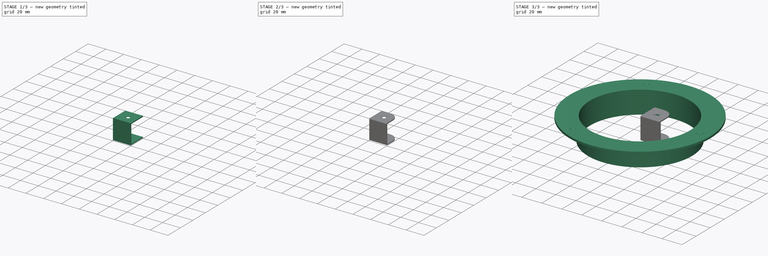
[diagram: build sequence overview — one tinted view per stage of 3, left to right]
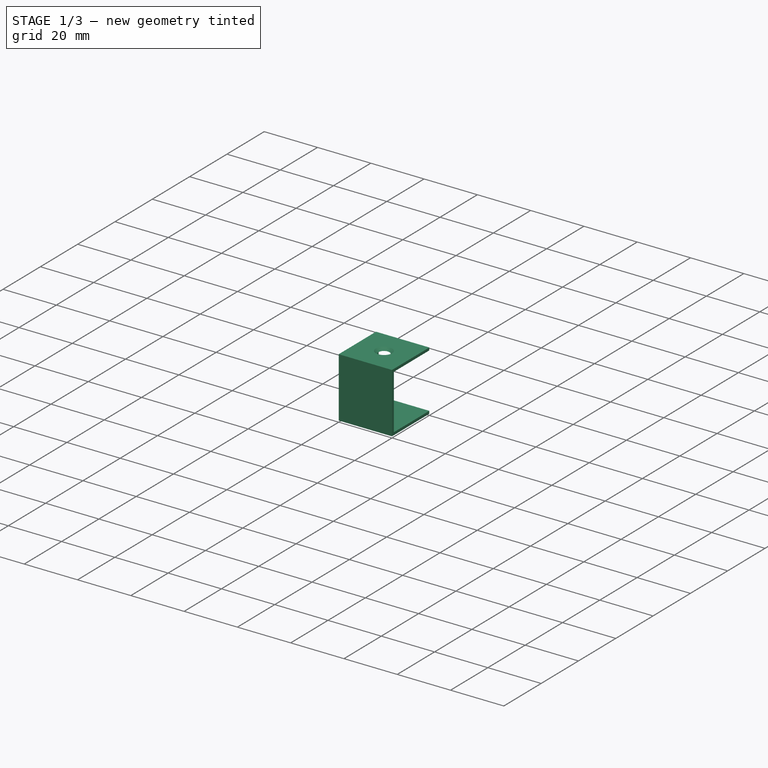
[diagram: stage 1 of 3 — iso view after this stage's code; geometry added in this stage tinted green]
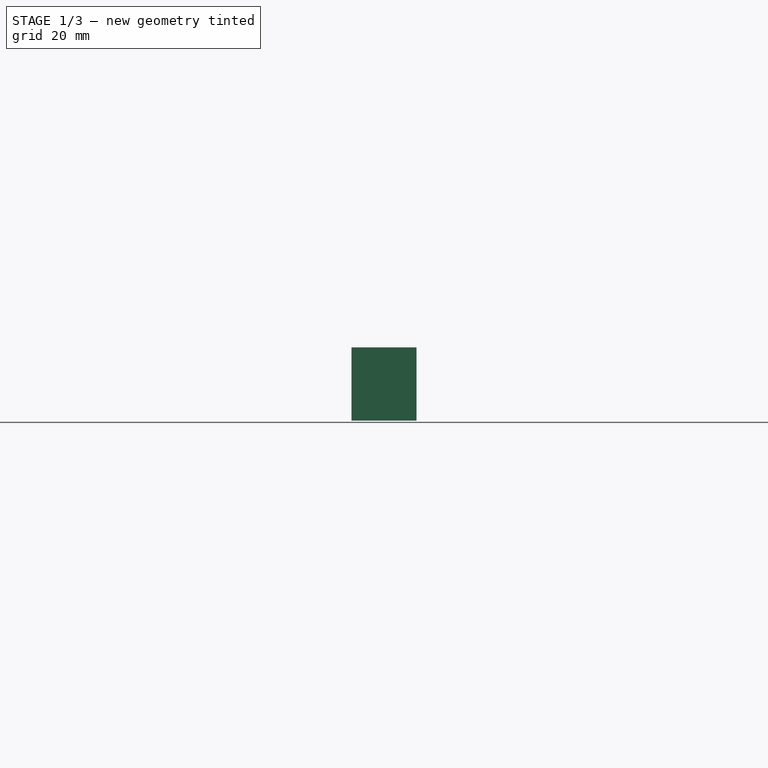
[diagram: stage 1 of 3 — front view after this stage's code; geometry added in this stage tinted green]
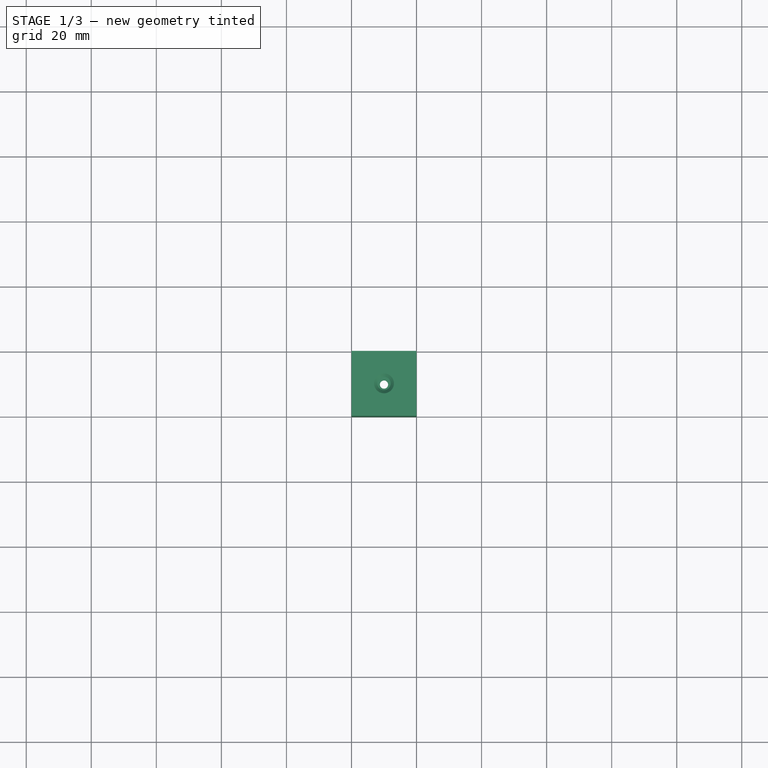
[diagram: stage 1 of 3 — top view after this stage's code; geometry added in this stage tinted green]
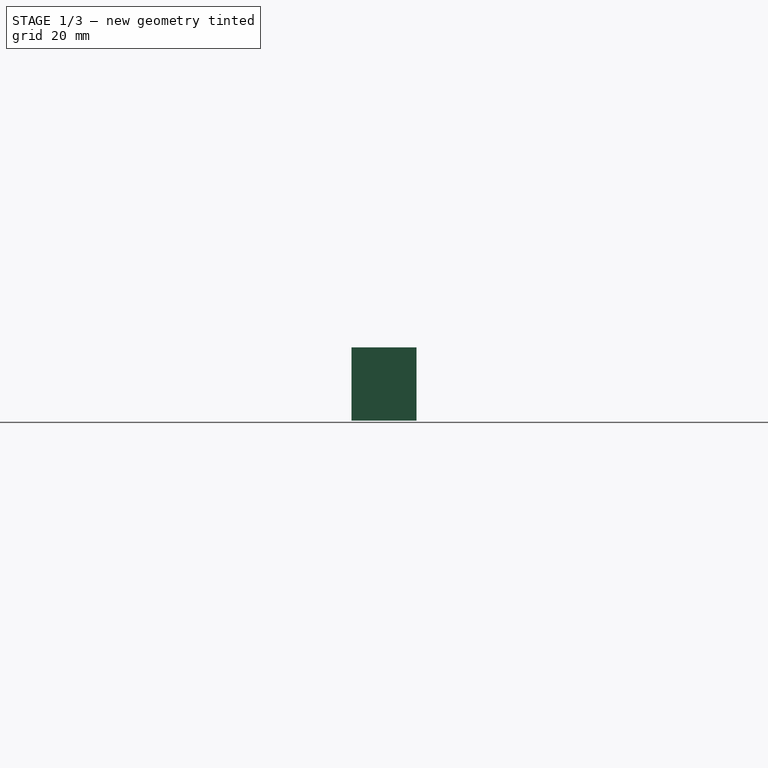
[diagram: stage 1 of 3 — right view after this stage's code; geometry added in this stage tinted green]
FCSTD DOCUMENT  (FreeCAD 0.22R37898 (Git))
Label: table
License: All rights reserved
LicenseURL: http://en.wikipedia.org/wiki/All_rights_reserved
objects: Sketcher::SketchObject×5, PartDesign::Hole×2, PartDesign::Body×2, PartDesign::Pad×1, PartDesign::Thickness×1, PartDesign::Revolution×1, PartDesign::PolarPattern×1, PartDesign::Pocket×1, PartDesign::Fillet×1
note: 22 computed .brp shape members not serialized (recipe doc carries the construction recipe); baked Part::Feature solids carry a one-line shape summary decoded from their .brp

FEATURE [Sketcher::SketchObject] Sketch
  AttachmentSupport = -> [XY_Plane]
  FullyConstrained = true
  MapMode = 5
  sketch-geometry (4):
    g0: LineSegment StartX=0 StartY=0 StartZ=0 EndX=20 EndY=0 EndZ=0
    g1: LineSegment StartX=20 StartY=0 StartZ=0 EndX=20 EndY=20 EndZ=0
    g2: LineSegment StartX=20 StartY=20 StartZ=0 EndX=0 EndY=20 EndZ=0
    g3: LineSegment StartX=0 StartY=20 StartZ=0 EndX=0 EndY=0 EndZ=0
  constraints (11):
    c: Coincident(g0,g1)
    c: Coincident(g1,g2)
    c: Coincident(g2,g3)
    c: Coincident(g3,g0)
    c: Horizontal(g0)
    c: Horizontal(g2)
    c: Vertical(g1)
    c: Vertical(g3)
    c: Distance(g1,g3) = 20
    c: Distance(g0,g2) = 20
    c: Coincident(g0,g-1)
FEATURE [PartDesign::Pad] Pad
  Direction = (0,0,1)
  Length = 22.5
  Length2 = 10
  Profile = -> Sketch
  ReferenceAxis = -> Sketch [N_Axis]
  Refine = true
  Suppressed = false
  Type = 0
FEATURE [PartDesign::Thickness] Thickness
  Base = -> Pad [Face2,Face3]
  BaseFeature = -> Pad
  Intersection = false
  Join = 0
  Mode = 0
  Refine = true
  Reversed = true
  SupportTransform = false
  Suppressed = false
  Value = 1
FEATURE [Sketcher::SketchObject] Sketch001
  AttachmentSupport = -> [Thickness]
  ExternalGeometry = -> [Thickness]
  FullyConstrained = false
  MapMode = 5
  Placement = pos=(0,0,22.5) rot=(0,0,1;0rad)
  sketch-geometry (2):
    g0: LineSegment StartX=20 StartY=0 StartZ=0 EndX=10 EndY=10 EndZ=0
    g1: Circle CenterX=10 CenterY=10 CenterZ=0 NormalX=0 NormalY=0 NormalZ=1 AngleXU=0 Radius=1.5
  constraints (3):
    c: Coincident(g0,g-4)
    c: Diameter(g1) = 3
    c: Coincident(g1,g0)
FEATURE [PartDesign::Hole] Hole
  BaseFeature = -> Thickness
  CustomThreadClearance = 0
  Depth = 73.007
  DepthType = 1
  Diameter = 2.52
  DrillForDepth = false
  DrillPoint = 1
  DrillPointAngle = 118
  HoleCutCountersinkAngle = 90
  HoleCutCustomValues = false
  HoleCutDepth = 0
  HoleCutDiameter = 6.1
  HoleCutType = 2
  ModelThread = true
  Profile = -> Sketch001 [Edge1]
  Refine = true
  Suppressed = false
  Tapered = false
  TaperedAngle = 90
  ThreadClass = 0
  ThreadDepth = 73.007
  ThreadDepthType = 0
  ThreadDirection = 0
  ThreadFit = 0
  ThreadSize = 9
  ThreadType = 1
  Threaded = true
  UseCustomThreadClearance = false
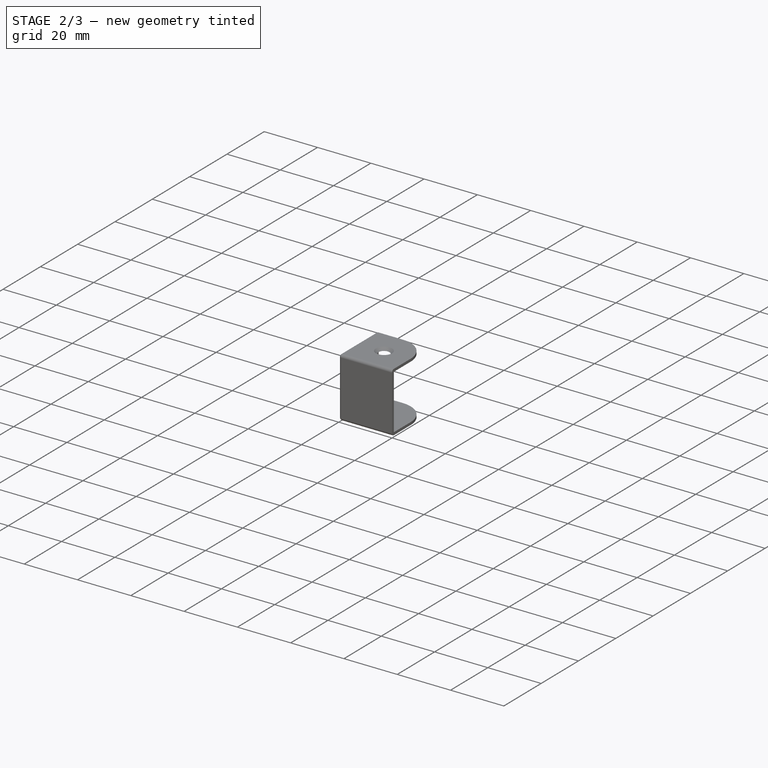
[diagram: stage 2 of 3 — iso view after this stage's code; geometry added in this stage tinted green]
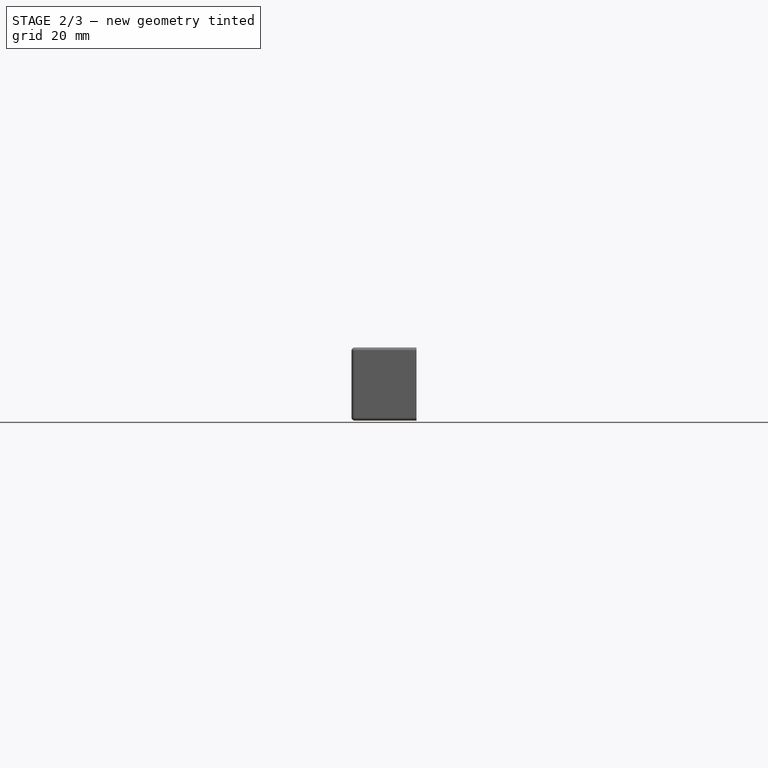
[diagram: stage 2 of 3 — front view after this stage's code; geometry added in this stage tinted green]
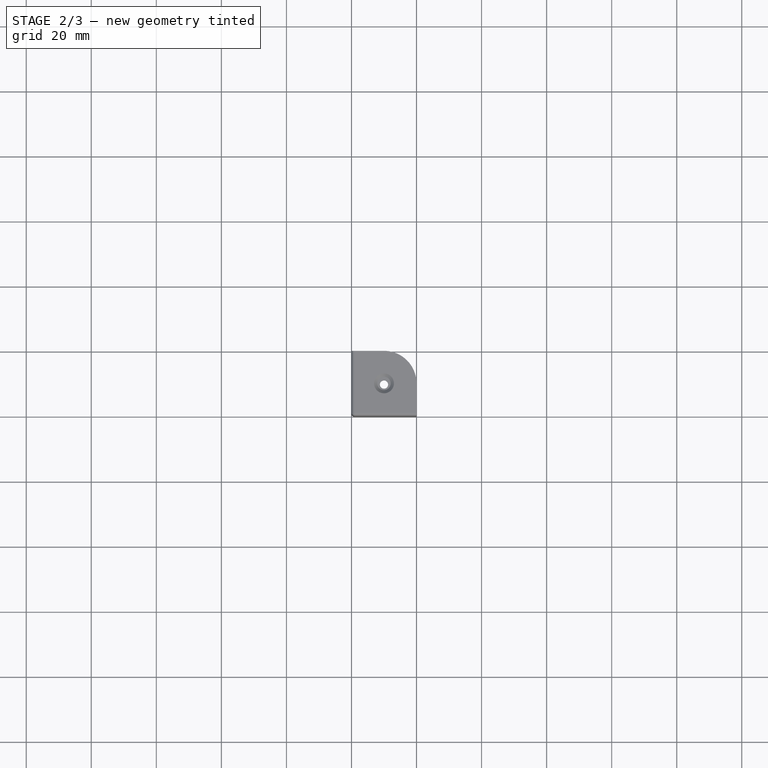
[diagram: stage 2 of 3 — top view after this stage's code; geometry added in this stage tinted green]
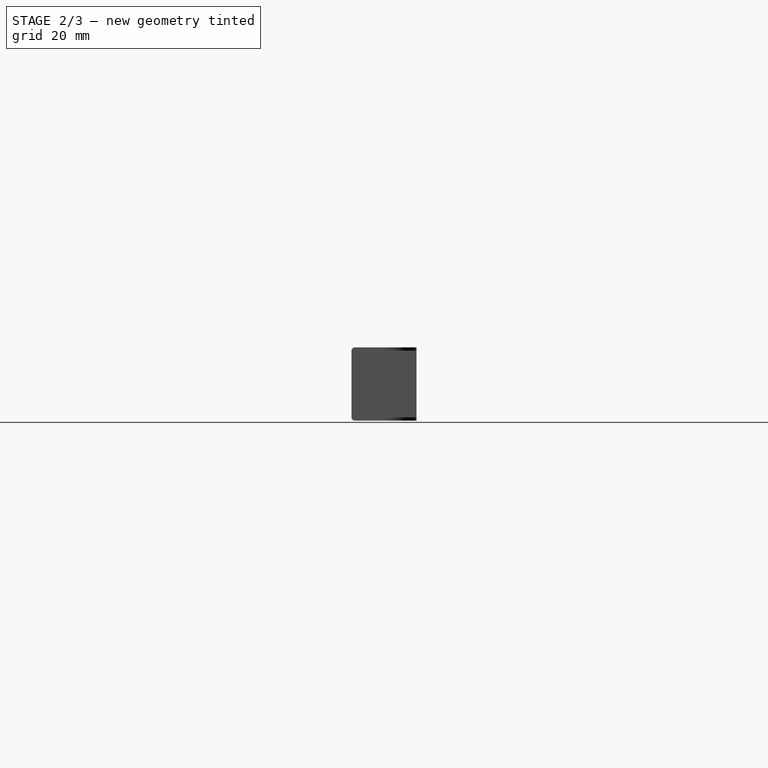
[diagram: stage 2 of 3 — right view after this stage's code; geometry added in this stage tinted green]
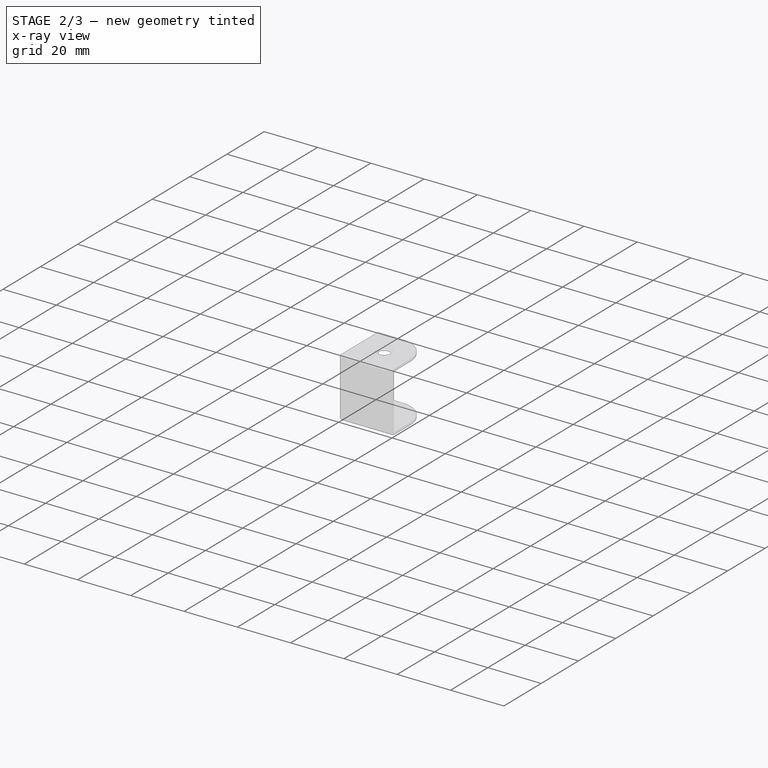
[diagram: stage 2 of 3 — x-ray composite at the iso view; earlier geometry ghosted, this stage's added geometry solid]
FEATURE [PartDesign::Body] Body001  label="cable hole"
  AllowCompound = false
  Group = -> [Sketch002,Revolution,Sketch003,Hole001,PolarPattern]
  Origin = -> Origin001
  Placement = pos=(0,0,0) rot=(1,0,0;3.14159rad)
  Tip = -> PolarPattern
FEATURE [Sketcher::SketchObject] Sketch004
  AttachmentSupport = -> [Hole]
  ExternalGeometry = -> [Hole]
  FullyConstrained = false
  MapMode = 5
  Placement = pos=(0,0,22.5) rot=(0,0,1;0rad)
  sketch-geometry (8):
    g0: LineSegment StartX=0 StartY=20 StartZ=0 EndX=20 EndY=0 EndZ=0
    g1: LineSegment StartX=0 StartY=0 StartZ=0 EndX=10 EndY=10 EndZ=0
    g2: LineSegment StartX=10 StartY=10 StartZ=0 EndX=10 EndY=20 EndZ=0
    g3: LineSegment StartX=10 StartY=10 StartZ=0 EndX=20 EndY=10 EndZ=0
    g4: ArcOfCircle CenterX=10 CenterY=10 CenterZ=0 NormalX=0 NormalY=0 NormalZ=1 AngleXU=0 Radius=10 StartAngle=0 EndAngle=1.5708
    g5: ArcOfCircle CenterX=10 CenterY=10 CenterZ=0 NormalX=0 NormalY=0 NormalZ=1 AngleXU=0 Radius=10 StartAngle=5.32e-14 EndAngle=1.5708
    g6: LineSegment StartX=10 StartY=20 StartZ=0 EndX=20 EndY=20 EndZ=0
    g7: LineSegment StartX=20 StartY=20 StartZ=0 EndX=20 EndY=10 EndZ=0
  constraints (16):
    c: Coincident(g0,g-3)
    c: Coincident(g0,g-4)
    c: Coincident(g1,g-1)
    c: PointOnObject(g1,g0)
    c: Coincident(g2,g1)
    c: Symmetric(g-3,g-3,g2)
    c: Vertical(g2)
    c: Coincident(g3,g1)
    c: Symmetric(g-4,g-4,g3)
    c: Coincident(g6,g4)
    c: Coincident(g6,g-4)
    c: Horizontal(g6)
    c: Coincident(g7,g6)
    c: Tangent(g7,g4) = 1.5708
    c: Vertical(g7)
    c: Block(g4)
FEATURE [PartDesign::Pocket] Pocket  label="round corner "
  BaseFeature = -> Hole
  Direction = (0,0,-1)
  Length = 5
  Length2 = 5
  Profile = -> Sketch004
  ReferenceAxis = -> Sketch004 [N_Axis]
  Refine = true
  Suppressed = false
  Type = 1
FEATURE [PartDesign::Fillet] Fillet
  Base = -> Pocket [Edge1,Edge6,Edge7,Edge4,Edge3]
  BaseFeature = -> Pocket
  Radius = 1
  Refine = true
  SupportTransform = false
  Suppressed = false
  UseAllEdges = false
FEATURE [PartDesign::Body] Body  label="edge protection"
  AllowCompound = false
  Group = -> [Sketch,Pad,Thickness,Sketch001,Hole,Sketch004,Pocket,Fillet]
  Origin = -> Origin
  Tip = -> Fillet
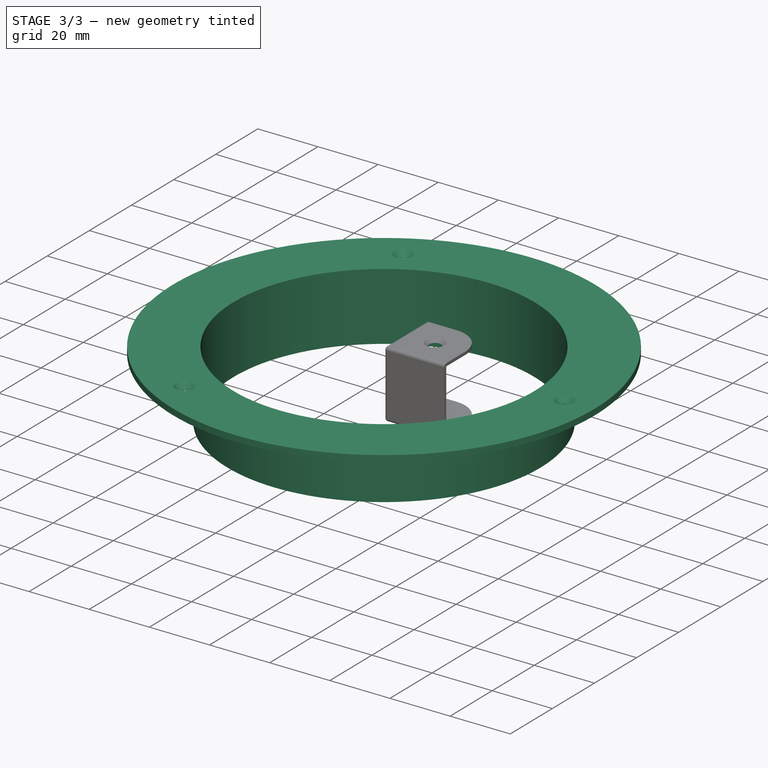
[diagram: stage 3 of 3 — iso view after this stage's code; geometry added in this stage tinted green]
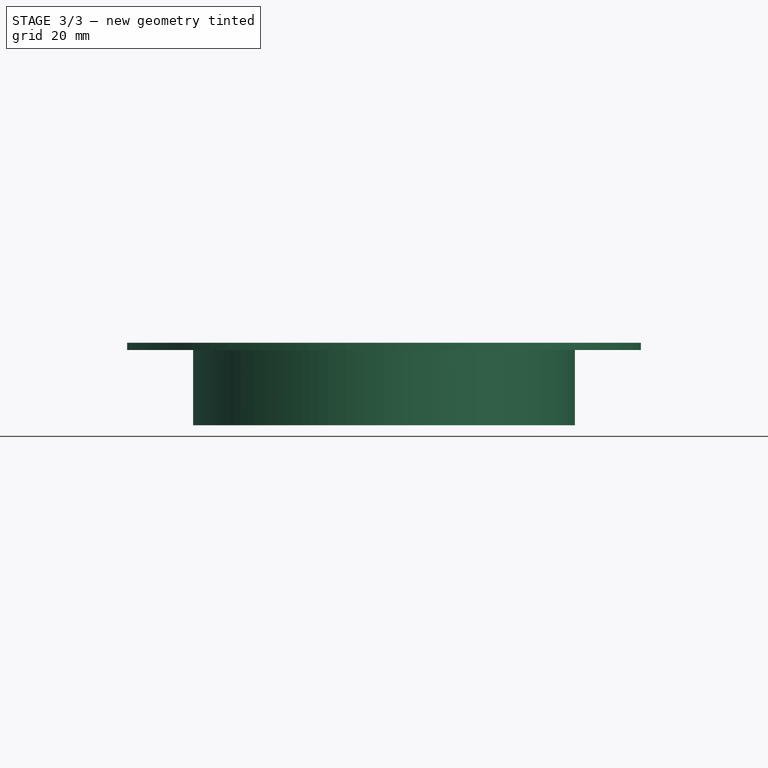
[diagram: stage 3 of 3 — front view after this stage's code; geometry added in this stage tinted green]
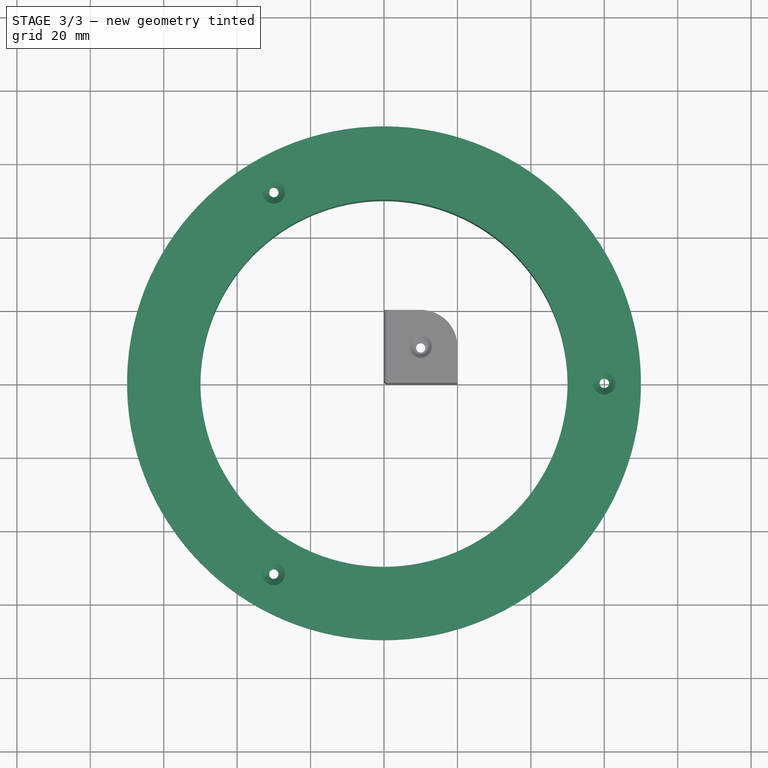
[diagram: stage 3 of 3 — top view after this stage's code; geometry added in this stage tinted green]
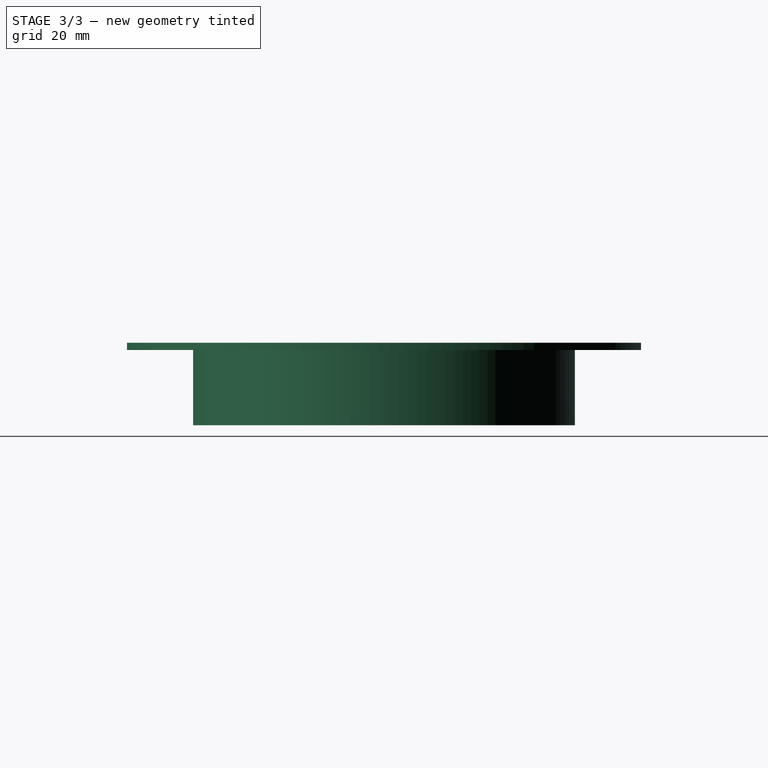
[diagram: stage 3 of 3 — right view after this stage's code; geometry added in this stage tinted green]
FEATURE [Sketcher::SketchObject] Sketch002
  AttachmentSupport = -> [YZ_Plane001]
  FullyConstrained = true
  MapMode = 5
  Placement = pos=(0,0,0) rot=(0.57735,0.57735,0.57735;2.0944rad)
  sketch-geometry (9):
    g0: LineSegment StartX=0 StartY=0 StartZ=0 EndX=0 EndY=22.5 EndZ=0
    g1: LineSegment StartX=0 StartY=22.5 StartZ=0 EndX=50 EndY=22.5 EndZ=0
    g2: LineSegment StartX=0 StartY=0 StartZ=0 EndX=50 EndY=0 EndZ=0
    g3: LineSegment StartX=50 StartY=22.5 StartZ=0 EndX=70 EndY=22.5 EndZ=0
    g4: LineSegment StartX=50 StartY=22.5 StartZ=0 EndX=50 EndY=0 EndZ=0
    g5: LineSegment StartX=70 StartY=22.5 StartZ=0 EndX=70 EndY=20.5 EndZ=0
    g6: LineSegment StartX=70 StartY=20.5 StartZ=0 EndX=52 EndY=20.5 EndZ=0
    g7: LineSegment StartX=52 StartY=20.5 StartZ=0 EndX=52 EndY=0 EndZ=0
    g8: LineSegment StartX=50 StartY=0 StartZ=0 EndX=52 EndY=0 EndZ=0
  constraints (25):
    c: Distance(g0) = 22.5
    c: Coincident(g0,g-1)
    c: PointOnObject(g0,g-2)
    c: Distance(g1) = 50
    c: Coincident(g1,g0)
    c: Horizontal(g1)
    c: Distance(g2) = 50
    c: Coincident(g2,g0)
    c: Horizontal(g2)
    c: Distance(g3) = 20
    c: Coincident(g3,g1)
    c: Horizontal(g3)
    c: Coincident(g4,g1)
    c: Coincident(g4,g2)
    c: Distance(g5) = 2
    c: Coincident(g5,g3)
    c: Vertical(g5)
    c: Distance(g6) = 18
    c: Coincident(g6,g5)
    c: Horizontal(g6)
    c: Coincident(g7,g6)
    c: PointOnObject(g7,g-1)
    c: Vertical(g7)
    c: Coincident(g8,g2)
    c: Coincident(g8,g7)
FEATURE [PartDesign::Revolution] Revolution
  Angle = 360
  Angle2 = 60
  Axis = (0,0,1)
  Base = (0,0,0)
  Placement = pos=(0,0,0) rot=(1,1,1;2.0944rad)
  Profile = -> Sketch002
  ReferenceAxis = -> Sketch002 [V_Axis]
  Refine = true
  Reversed = true
  Suppressed = false
  Type = 0
FEATURE [Sketcher::SketchObject] Sketch003
  AttachmentSupport = -> [Revolution]
  ExternalGeometry = -> [Revolution]
  FullyConstrained = false
  MapMode = 5
  Placement = pos=(-7.5e-15,2.5e-15,22.5) rot=(0,0,-1;1.5708rad)
  sketch-geometry (3):
    g0: LineSegment StartX=0.00472227 StartY=70 StartZ=0 EndX=0.00472227 EndY=50 EndZ=0
    g1: LineSegment StartX=-7.10743 StartY=60 StartZ=0 EndX=0.00472227 EndY=60 EndZ=0
    g2: Circle CenterX=0.00472227 CenterY=60 CenterZ=0 NormalX=0 NormalY=0 NormalZ=1 AngleXU=0 Radius=1.5
  constraints (8):
    c: PointOnObject(g0,g-4)
    c: PointOnObject(g0,g-3)
    c: Vertical(g0)
    c: Symmetric(g0,g0,g1)
    c: PointOnObject(g1,g0)
    c: Diameter(g2) = 3
    c: Coincident(g2,g1)
    c: Block(g2)
FEATURE [PartDesign::Hole] Hole001
  BaseFeature = -> Revolution
  CustomThreadClearance = 0
  Depth = 402.456
  DepthType = 1
  Diameter = 2.52
  DrillForDepth = false
  DrillPoint = 1
  DrillPointAngle = 118
  HoleCutCountersinkAngle = 90
  HoleCutCustomValues = false
  HoleCutDepth = 0
  HoleCutDiameter = 6.1
  HoleCutType = 2
  ModelThread = true
  Placement = pos=(0,0,0) rot=(1,1,1;2.0944rad)
  Profile = -> Sketch003 [Edge1]
  Refine = true
  Suppressed = false
  Tapered = false
  TaperedAngle = 90
  ThreadClass = 0
  ThreadDepth = 402.456
  ThreadDepthType = 0
  ThreadDirection = 0
  ThreadFit = 0
  ThreadSize = 9
  ThreadType = 1
  Threaded = true
  UseCustomThreadClearance = false
FEATURE [PartDesign::PolarPattern] PolarPattern
  Angle = 360
  Axis = -> Sketch003 [N_Axis]
  BaseFeature = -> Hole001
  Mode = 0
  Occurrences = 3
  Offset = 120
  Originals = -> [Hole001]
  Placement = pos=(0,0,0) rot=(1,1,1;2.0944rad)
  Refine = true
  Suppressed = false
  TransformMode = 0
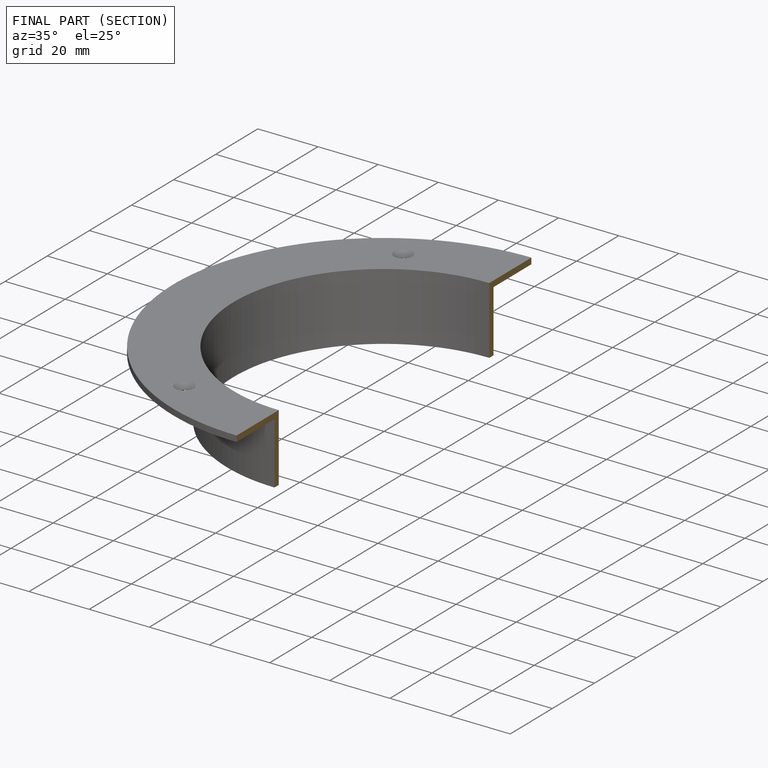
[diagram: finished part — half-section view (interior)]
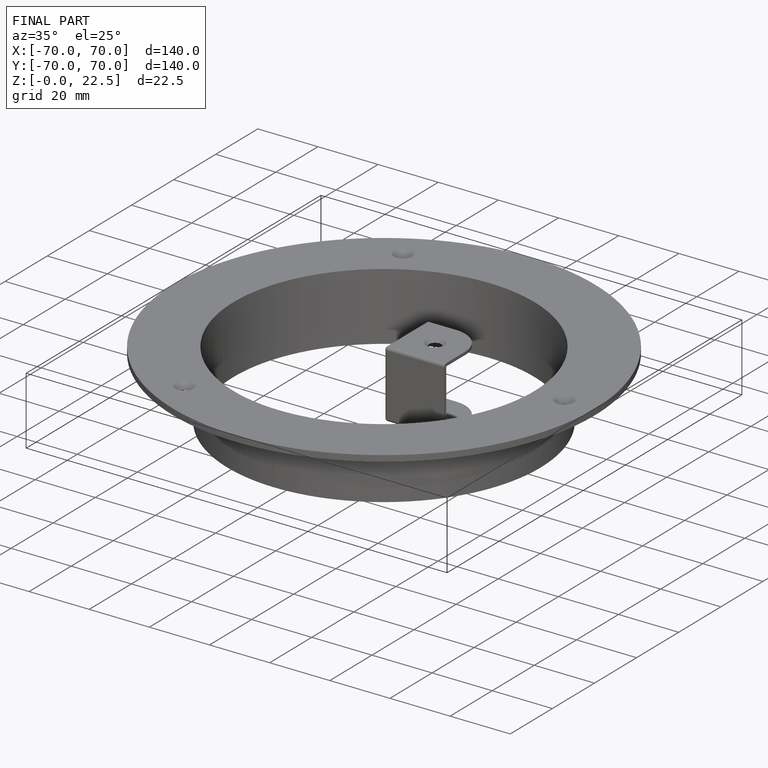
[diagram: finished part — iso view with bounding-box wireframe]
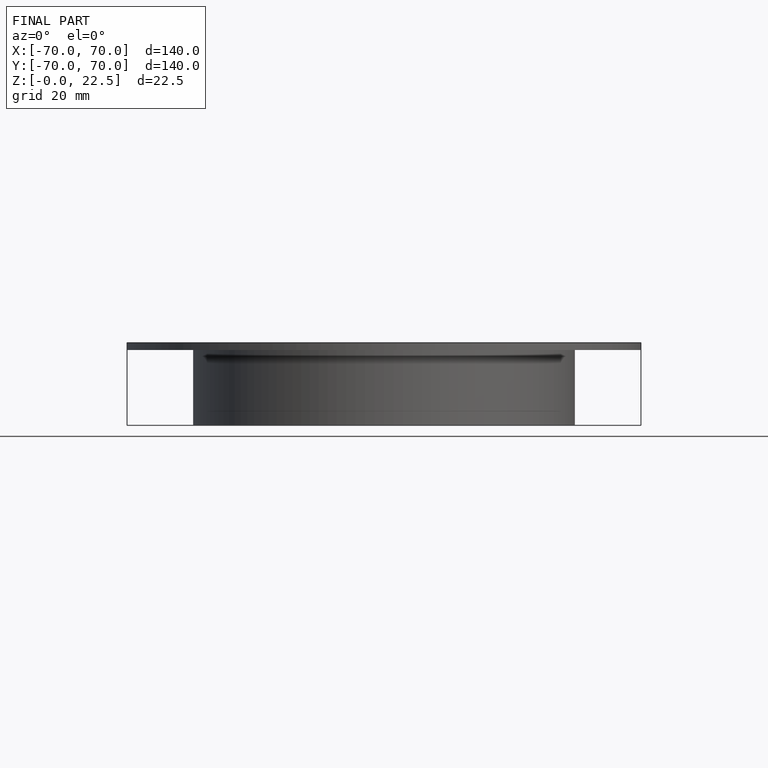
[diagram: finished part — front view with bounding-box wireframe]
